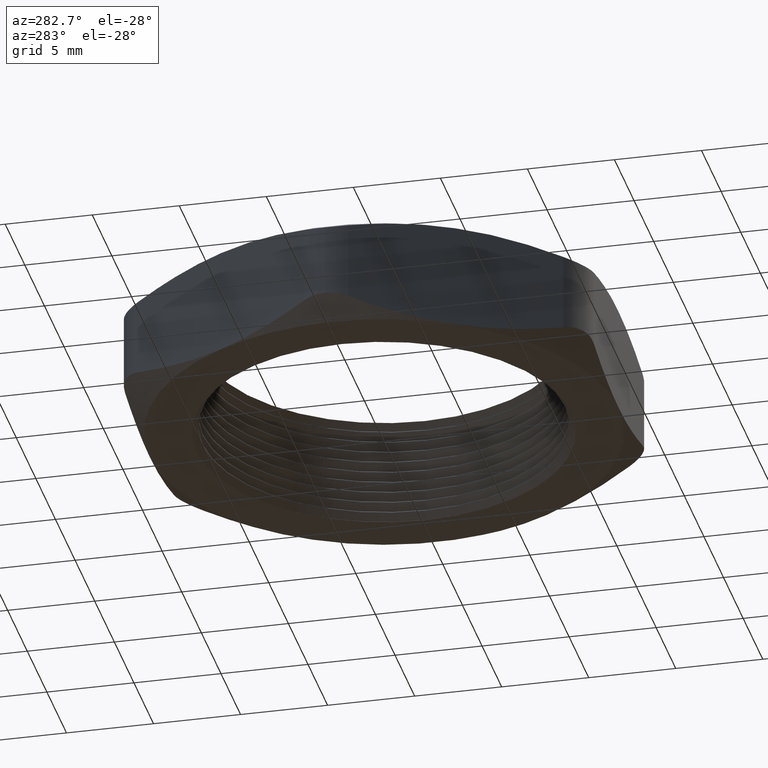
[diagram: clean part render]
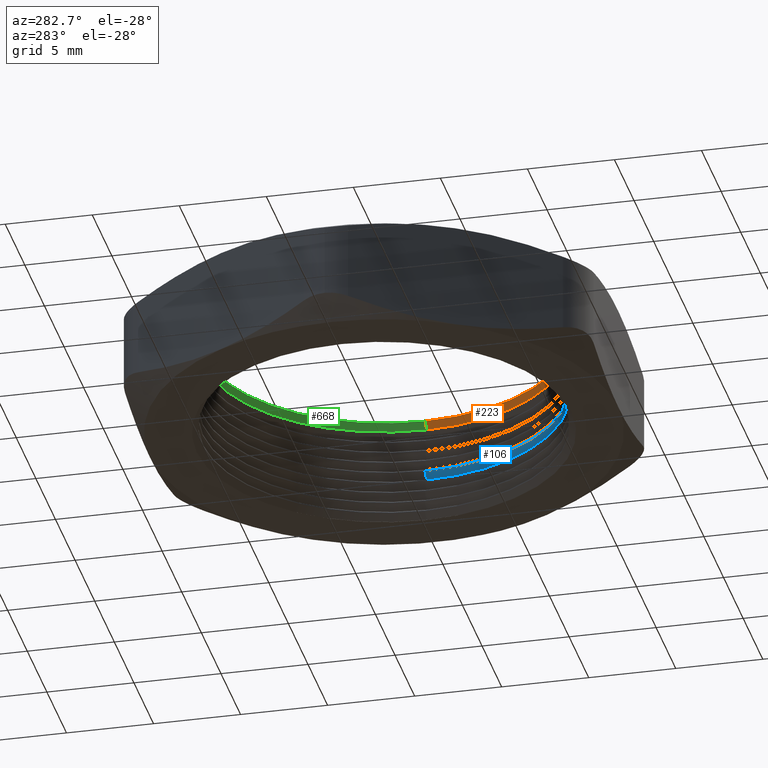
[diagram: same view with three faces highlighted in distinct colors, each labeled with its STEP entity id]
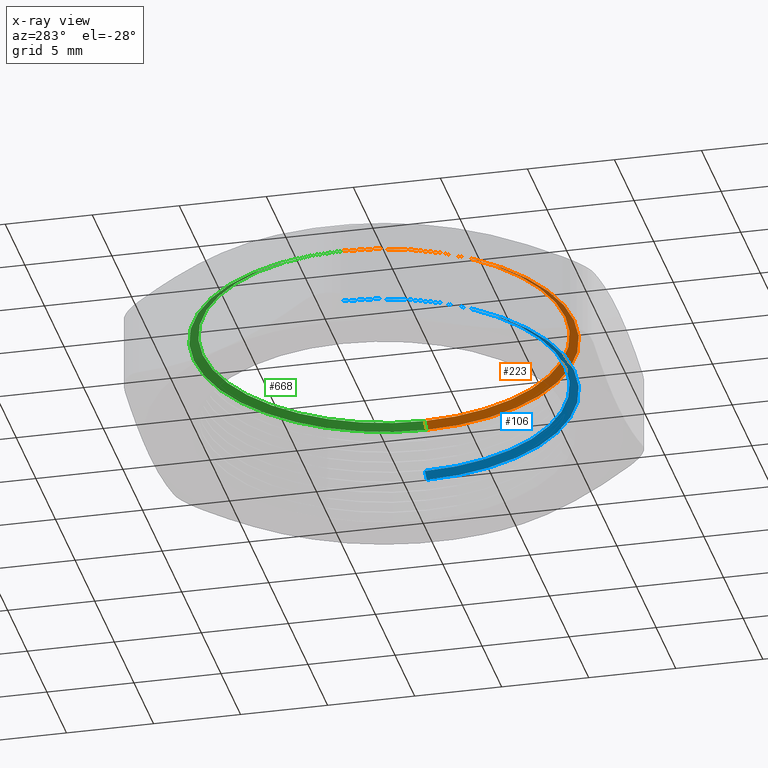
[diagram: x-ray of the same camera — body ghosted, the three highlighted faces saturated]
A machine part, auxiliary view with three faces highlighted in distinct colors.
The next image is the same camera in x-ray (body ghosted, the three faces saturated) — at least one of them is partly hidden behind the body in this view.
Their STEP definitions:

[orange] entity #223 — the highlighted conical surface has half-angle 60 deg.
#217 = VERTEX_POINT ( 'NONE', #1246 ) ;
#219 = EDGE_CURVE ( 'NONE', #217, #220, #1245, .T. ) ;
#220 = VERTEX_POINT ( 'NONE', #1240 ) ;
#223 = ADVANCED_FACE ( 'NONE', ( #1235 ), #1233, .F. ) ;
#224 = EDGE_LOOP ( 'NONE', ( #225, #229, #231, #232 ) ) ;
#225 = ORIENTED_EDGE ( 'NONE', *, *, #226, .T. ) ;
#226 = EDGE_CURVE ( 'NONE', #227, #228, #1228, .T. ) ;
#227 = VERTEX_POINT ( 'NONE', #1224 ) ;
#228 = VERTEX_POINT ( 'NONE', #1223 ) ;
#229 = ORIENTED_EDGE ( 'NONE', *, *, #230, .T. ) ;
#230 = EDGE_CURVE ( 'NONE', #228, #220, #1283, .T. ) ;
#231 = ORIENTED_EDGE ( 'NONE', *, *, #219, .F. ) ;
#232 = ORIENTED_EDGE ( 'NONE', *, *, #233, .F. ) ;
#233 = EDGE_CURVE ( 'NONE', #227, #217, #1279, .T. ) ;
#1223 = CARTESIAN_POINT ( 'NONE',  ( 0.4099999999999999800, 5.143516556418883200E-017, 0.2399999999999999900 ) ) ;
#1224 = CARTESIAN_POINT ( 'NONE',  ( -0.4099999999999999800, 0.0000000000000000000, 0.2399999999999999900 ) ) ;
#1225 = DIRECTION ( 'NONE',  ( 1.000000000000000000, 0.0000000000000000000, 0.0000000000000000000 ) ) ;
#1226 = DIRECTION ( 'NONE',  ( 0.0000000000000000000, 0.0000000000000000000, 1.000000000000000000 ) ) ;
#1227 = AXIS2_PLACEMENT_3D ( 'NONE', #1234, #1226, #1225 ) ;
#1228 = CIRCLE ( 'NONE', #1227, 0.4099999999999999800 ) ;
#1229 = DIRECTION ( 'NONE',  ( -1.000000000000000000, 0.0000000000000000000, 0.0000000000000000000 ) ) ;
#1230 = DIRECTION ( 'NONE',  ( 0.0000000000000000000, 0.0000000000000000000, -1.000000000000000000 ) ) ;
#1231 = CARTESIAN_POINT ( 'NONE',  ( 0.0000000000000000000, 0.0000000000000000000, 0.2284529946162077400 ) ) ;
#1232 = AXIS2_PLACEMENT_3D ( 'NONE', #1231, #1230, #1229 ) ;
#1233 = CONICAL_SURFACE ( 'NONE', #1232, 0.4299999999999999900, 1.047197551196607600 ) ;
#1234 = CARTESIAN_POINT ( 'NONE',  ( 0.0000000000000000000, 0.0000000000000000000, 0.2399999999999999900 ) ) ;
#1235 = FACE_OUTER_BOUND ( 'NONE', #224, .T. ) ;
#1240 = CARTESIAN_POINT ( 'NONE',  ( 0.4299999999999999900, 5.265981236333618200E-017, 0.2284529946162077400 ) ) ;
#1241 = DIRECTION ( 'NONE',  ( 1.000000000000000000, 0.0000000000000000000, 0.0000000000000000000 ) ) ;
#1242 = DIRECTION ( 'NONE',  ( 0.0000000000000000000, 0.0000000000000000000, 1.000000000000000000 ) ) ;
#1243 = CARTESIAN_POINT ( 'NONE',  ( 0.0000000000000000000, 0.0000000000000000000, 0.2284529946162077400 ) ) ;
#1244 = AXIS2_PLACEMENT_3D ( 'NONE', #1243, #1242, #1241 ) ;
#1245 = CIRCLE ( 'NONE', #1244, 0.4299999999999999900 ) ;
#1246 = CARTESIAN_POINT ( 'NONE',  ( -0.4299999999999999900, 0.0000000000000000000, 0.2284529946162077400 ) ) ;
#1276 = DIRECTION ( 'NONE',  ( -0.8660254037844434800, 0.0000000000000000000, -0.4999999999999913400 ) ) ;
#1277 = VECTOR ( 'NONE', #1276, 39.37007874015748900 ) ;
#1278 = CARTESIAN_POINT ( 'NONE',  ( -0.4299999999999999900, 0.0000000000000000000, 0.2284529946162077400 ) ) ;
#1279 = LINE ( 'NONE', #1278, #1277 ) ;
#1280 = DIRECTION ( 'NONE',  ( 0.8660254037844434800, 1.060575238724912700E-016, -0.4999999999999913400 ) ) ;
#1281 = VECTOR ( 'NONE', #1280, 39.37007874015748900 ) ;
#1282 = CARTESIAN_POINT ( 'NONE',  ( 0.4299999999999999900, 5.265981236333618200E-017, 0.2284529946162077400 ) ) ;
#1283 = LINE ( 'NONE', #1282, #1281 ) ;

[blue] entity #106 — the highlighted conical surface has half-angle 60 deg.
#100 = VERTEX_POINT ( 'NONE', #998 ) ;
#102 = EDGE_CURVE ( 'NONE', #100, #103, #997, .T. ) ;
#103 = VERTEX_POINT ( 'NONE', #992 ) ;
#106 = ADVANCED_FACE ( 'NONE', ( #987 ), #986, .F. ) ;
#107 = EDGE_LOOP ( 'NONE', ( #108, #112, #114, #115 ) ) ;
#108 = ORIENTED_EDGE ( 'NONE', *, *, #109, .T. ) ;
#109 = EDGE_CURVE ( 'NONE', #110, #111, #1045, .T. ) ;
#110 = VERTEX_POINT ( 'NONE', #1040 ) ;
#111 = VERTEX_POINT ( 'NONE', #1039 ) ;
#112 = ORIENTED_EDGE ( 'NONE', *, *, #113, .T. ) ;
#113 = EDGE_CURVE ( 'NONE', #111, #103, #1038, .T. ) ;
#114 = ORIENTED_EDGE ( 'NONE', *, *, #102, .F. ) ;
#115 = ORIENTED_EDGE ( 'NONE', *, *, #116, .F. ) ;
#116 = EDGE_CURVE ( 'NONE', #110, #100, #1034, .T. ) ;
#982 = DIRECTION ( 'NONE',  ( -1.000000000000000000, 0.0000000000000000000, 0.0000000000000000000 ) ) ;
#983 = DIRECTION ( 'NONE',  ( 0.0000000000000000000, 0.0000000000000000000, -1.000000000000000000 ) ) ;
#984 = CARTESIAN_POINT ( 'NONE',  ( 0.0000000000000000000, 0.0000000000000000000, 0.1034529946162077400 ) ) ;
#985 = AXIS2_PLACEMENT_3D ( 'NONE', #984, #983, #982 ) ;
#986 = CONICAL_SURFACE ( 'NONE', #985, 0.4299999999999999900, 1.047197551196607600 ) ;
#987 = FACE_OUTER_BOUND ( 'NONE', #107, .T. ) ;
#992 = CARTESIAN_POINT ( 'NONE',  ( 0.4299999999999999900, 5.265981236333618200E-017, 0.1034529946162077400 ) ) ;
#993 = DIRECTION ( 'NONE',  ( 1.000000000000000000, 0.0000000000000000000, 0.0000000000000000000 ) ) ;
#994 = DIRECTION ( 'NONE',  ( 0.0000000000000000000, 0.0000000000000000000, 1.000000000000000000 ) ) ;
#995 = CARTESIAN_POINT ( 'NONE',  ( 0.0000000000000000000, 0.0000000000000000000, 0.1034529946162077400 ) ) ;
#996 = AXIS2_PLACEMENT_3D ( 'NONE', #995, #994, #993 ) ;
#997 = CIRCLE ( 'NONE', #996, 0.4299999999999999900 ) ;
#998 = CARTESIAN_POINT ( 'NONE',  ( -0.4299999999999999900, 0.0000000000000000000, 0.1034529946162077400 ) ) ;
#1031 = DIRECTION ( 'NONE',  ( -0.8660254037844434800, 0.0000000000000000000, -0.4999999999999913400 ) ) ;
#1032 = VECTOR ( 'NONE', #1031, 39.37007874015748900 ) ;
#1033 = CARTESIAN_POINT ( 'NONE',  ( -0.4299999999999999900, 0.0000000000000000000, 0.1034529946162077400 ) ) ;
#1034 = LINE ( 'NONE', #1033, #1032 ) ;
#1035 = DIRECTION ( 'NONE',  ( 0.8660254037844434800, 1.060575238724912700E-016, -0.4999999999999913400 ) ) ;
#1036 = VECTOR ( 'NONE', #1035, 39.37007874015748900 ) ;
#1037 = CARTESIAN_POINT ( 'NONE',  ( 0.4299999999999999900, 5.265981236333618200E-017, 0.1034529946162077400 ) ) ;
#1038 = LINE ( 'NONE', #1037, #1036 ) ;
#1039 = CARTESIAN_POINT ( 'NONE',  ( 0.4099999999999999800, 5.021051876504147500E-017, 0.1149999999999999900 ) ) ;
#1040 = CARTESIAN_POINT ( 'NONE',  ( -0.4099999999999999800, 0.0000000000000000000, 0.1149999999999999900 ) ) ;
#1041 = DIRECTION ( 'NONE',  ( 1.000000000000000000, 0.0000000000000000000, 0.0000000000000000000 ) ) ;
#1042 = DIRECTION ( 'NONE',  ( 0.0000000000000000000, 0.0000000000000000000, 1.000000000000000000 ) ) ;
#1043 = CARTESIAN_POINT ( 'NONE',  ( 0.0000000000000000000, 0.0000000000000000000, 0.1149999999999999900 ) ) ;
#1044 = AXIS2_PLACEMENT_3D ( 'NONE', #1043, #1042, #1041 ) ;
#1045 = CIRCLE ( 'NONE', #1044, 0.4099999999999999800 ) ;

[green] entity #668 — the highlighted conical surface has half-angle 60 deg.
#217 = VERTEX_POINT ( 'NONE', #1246 ) ;
#220 = VERTEX_POINT ( 'NONE', #1240 ) ;
#227 = VERTEX_POINT ( 'NONE', #1224 ) ;
#228 = VERTEX_POINT ( 'NONE', #1223 ) ;
#230 = EDGE_CURVE ( 'NONE', #228, #220, #1283, .T. ) ;
#233 = EDGE_CURVE ( 'NONE', #227, #217, #1279, .T. ) ;
#491 = EDGE_CURVE ( 'NONE', #228, #227, #1838, .T. ) ;
#668 = ADVANCED_FACE ( 'NONE', ( #2121 ), #2116, .F. ) ;
#669 = EDGE_LOOP ( 'NONE', ( #670, #671, #672, #673 ) ) ;
#670 = ORIENTED_EDGE ( 'NONE', *, *, #230, .F. ) ;
#671 = ORIENTED_EDGE ( 'NONE', *, *, #491, .T. ) ;
#672 = ORIENTED_EDGE ( 'NONE', *, *, #233, .T. ) ;
#673 = ORIENTED_EDGE ( 'NONE', *, *, #674, .F. ) ;
#674 = EDGE_CURVE ( 'NONE', #220, #217, #2111, .T. ) ;
#1223 = CARTESIAN_POINT ( 'NONE',  ( 0.4099999999999999800, 5.143516556418883200E-017, 0.2399999999999999900 ) ) ;
#1224 = CARTESIAN_POINT ( 'NONE',  ( -0.4099999999999999800, 0.0000000000000000000, 0.2399999999999999900 ) ) ;
#1240 = CARTESIAN_POINT ( 'NONE',  ( 0.4299999999999999900, 5.265981236333618200E-017, 0.2284529946162077400 ) ) ;
#1246 = CARTESIAN_POINT ( 'NONE',  ( -0.4299999999999999900, 0.0000000000000000000, 0.2284529946162077400 ) ) ;
#1276 = DIRECTION ( 'NONE',  ( -0.8660254037844434800, 0.0000000000000000000, -0.4999999999999913400 ) ) ;
#1277 = VECTOR ( 'NONE', #1276, 39.37007874015748900 ) ;
#1278 = CARTESIAN_POINT ( 'NONE',  ( -0.4299999999999999900, 0.0000000000000000000, 0.2284529946162077400 ) ) ;
#1279 = LINE ( 'NONE', #1278, #1277 ) ;
#1280 = DIRECTION ( 'NONE',  ( 0.8660254037844434800, 1.060575238724912700E-016, -0.4999999999999913400 ) ) ;
#1281 = VECTOR ( 'NONE', #1280, 39.37007874015748900 ) ;
#1282 = CARTESIAN_POINT ( 'NONE',  ( 0.4299999999999999900, 5.265981236333618200E-017, 0.2284529946162077400 ) ) ;
#1283 = LINE ( 'NONE', #1282, #1281 ) ;
#1834 = DIRECTION ( 'NONE',  ( 1.000000000000000000, 0.0000000000000000000, 0.0000000000000000000 ) ) ;
#1835 = DIRECTION ( 'NONE',  ( 0.0000000000000000000, 0.0000000000000000000, 1.000000000000000000 ) ) ;
#1836 = CARTESIAN_POINT ( 'NONE',  ( 0.0000000000000000000, 0.0000000000000000000, 0.2399999999999999900 ) ) ;
#1837 = AXIS2_PLACEMENT_3D ( 'NONE', #1836, #1835, #1834 ) ;
#1838 = CIRCLE ( 'NONE', #1837, 0.4099999999999999800 ) ;
#2111 = CIRCLE ( 'NONE', #2175, 0.4299999999999999900 ) ;
#2112 = DIRECTION ( 'NONE',  ( -1.000000000000000000, 0.0000000000000000000, 0.0000000000000000000 ) ) ;
#2113 = DIRECTION ( 'NONE',  ( 0.0000000000000000000, 0.0000000000000000000, -1.000000000000000000 ) ) ;
#2114 = CARTESIAN_POINT ( 'NONE',  ( 0.0000000000000000000, 0.0000000000000000000, 0.2284529946162077400 ) ) ;
#2115 = AXIS2_PLACEMENT_3D ( 'NONE', #2114, #2113, #2112 ) ;
#2116 = CONICAL_SURFACE ( 'NONE', #2115, 0.4299999999999999900, 1.047197551196607600 ) ;
#2121 = FACE_OUTER_BOUND ( 'NONE', #669, .T. ) ;
#2172 = DIRECTION ( 'NONE',  ( 1.000000000000000000, 0.0000000000000000000, 0.0000000000000000000 ) ) ;
#2173 = DIRECTION ( 'NONE',  ( 0.0000000000000000000, 0.0000000000000000000, 1.000000000000000000 ) ) ;
#2174 = CARTESIAN_POINT ( 'NONE',  ( 0.0000000000000000000, 0.0000000000000000000, 0.2284529946162077400 ) ) ;
#2175 = AXIS2_PLACEMENT_3D ( 'NONE', #2174, #2173, #2172 ) ;